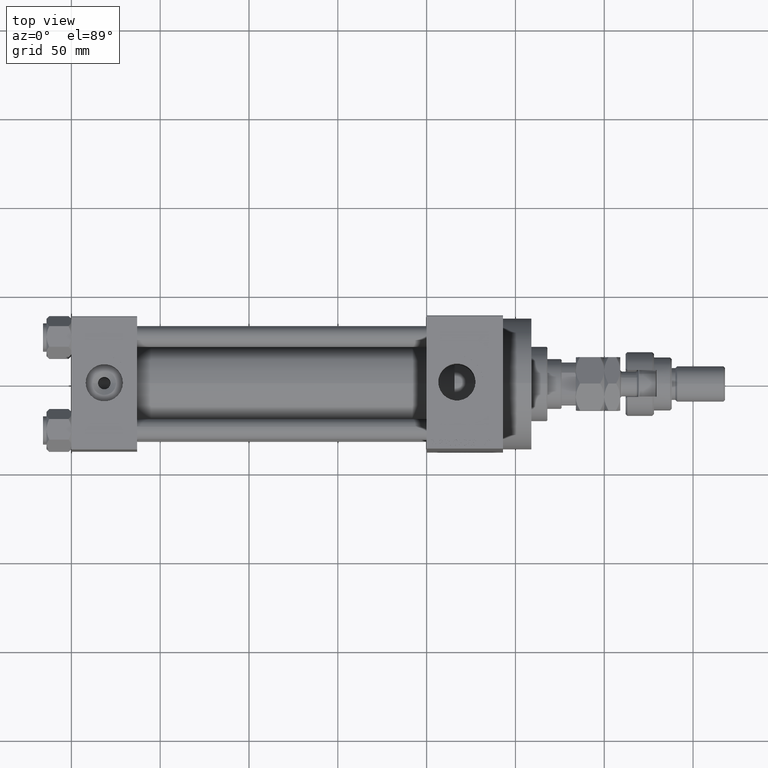
[diagram: clean part render]
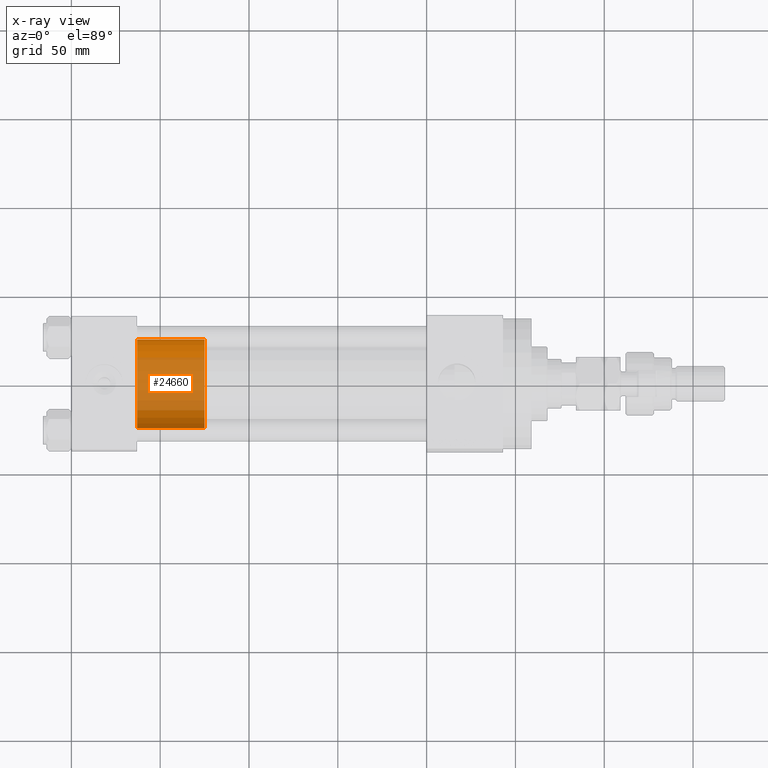
[diagram: x-ray — body ghosted, one internal face saturated and labeled with its STEP entity id]
A machine part, top view, then the same camera in x-ray: the body is ghosted and one INTERNAL B-rep face — a face not visible from any outside direction — is saturated and labeled: STEP entity #24660.
In plain terms, the highlighted cylindrical surface (partial cylindrical patch) has radius 25 mm, axis along (-1, 0, 0).
Its self-contained STEP definition (entity closure, byte-faithful):
#502 = CARTESIAN_POINT ( 'NONE',  ( -25.00000000000000000, 0.000000000000000000, 38.00000000000000000 ) ) ;
#4387 = ORIENTED_EDGE ( 'NONE', *, *, #37538, .F. ) ;
#6887 = EDGE_CURVE ( 'NONE', #29054, #11233, #15531, .T. ) ;
#8767 = AXIS2_PLACEMENT_3D ( 'NONE', #11409, #26918, #15210 ) ;
#8800 = CARTESIAN_POINT ( 'NONE',  ( 0.000000000000000000, 0.000000000000000000, 38.00000000000000000 ) ) ;
#9273 = AXIS2_PLACEMENT_3D ( 'NONE', #8800, #12371, #16167 ) ;
#9353 = CARTESIAN_POINT ( 'NONE',  ( 0.000000000000000000, 0.000000000000000000, 0.000000000000000000 ) ) ;
#9571 = CARTESIAN_POINT ( 'NONE',  ( -25.00000000000000000, 0.000000000000000000, 38.00000000000000000 ) ) ;
#11127 = CARTESIAN_POINT ( 'NONE',  ( 25.00000000000000000, 3.061616997868383043E-15, 38.00000000000000000 ) ) ;
#11233 = VERTEX_POINT ( 'NONE', #31351 ) ;
#11409 = CARTESIAN_POINT ( 'NONE',  ( 0.000000000000000000, 0.000000000000000000, 38.00000000000000000 ) ) ;
#12244 = EDGE_CURVE ( 'NONE', #29149, #13830, #40942, .T. ) ;
#12371 = DIRECTION ( 'NONE',  ( 0.000000000000000000, 0.000000000000000000, 1.000000000000000000 ) ) ;
#13830 = VERTEX_POINT ( 'NONE', #502 ) ;
#13844 = ORIENTED_EDGE ( 'NONE', *, *, #6887, .T. ) ;
#13963 = VECTOR ( 'NONE', #48460, 1000.000000000000000 ) ;
#14042 = ORIENTED_EDGE ( 'NONE', *, *, #48618, .T. ) ;
#15210 = DIRECTION ( 'NONE',  ( -1.000000000000000000, 0.000000000000000000, 0.000000000000000000 ) ) ;
#15531 = CIRCLE ( 'NONE', #43964, 25.00000000000000000 ) ;
#15731 = CYLINDRICAL_SURFACE ( 'NONE', #8767, 25.00000000000000000 ) ;
#16167 = DIRECTION ( 'NONE',  ( 1.000000000000000000, 0.000000000000000000, 0.000000000000000000 ) ) ;
#17955 = DIRECTION ( 'NONE',  ( 1.000000000000000000, 0.000000000000000000, 0.000000000000000000 ) ) ;
#21034 = DIRECTION ( 'NONE',  ( 0.000000000000000000, 0.000000000000000000, 1.000000000000000000 ) ) ;
#21317 = CARTESIAN_POINT ( 'NONE',  ( 25.00000000000000000, 3.061616997868383043E-15, 0.000000000000000000 ) ) ;
#21338 = EDGE_LOOP ( 'NONE', ( #31772, #14042, #13844, #4387 ) ) ;
#21759 = VECTOR ( 'NONE', #46257, 1000.000000000000000 ) ;
#24660 = ADVANCED_FACE ( 'NONE', ( #31735 ), #15731, .T. ) ;
#26918 = DIRECTION ( 'NONE',  ( -0.000000000000000000, -0.000000000000000000, -1.000000000000000000 ) ) ;
#29054 = VERTEX_POINT ( 'NONE', #21317 ) ;
#29149 = VERTEX_POINT ( 'NONE', #11127 ) ;
#30753 = CARTESIAN_POINT ( 'NONE',  ( 25.00000000000000000, 3.061616997868383043E-15, 38.00000000000000000 ) ) ;
#31351 = CARTESIAN_POINT ( 'NONE',  ( -25.00000000000000000, 0.000000000000000000, 0.000000000000000000 ) ) ;
#31735 = FACE_OUTER_BOUND ( 'NONE', #21338, .T. ) ;
#31772 = ORIENTED_EDGE ( 'NONE', *, *, #12244, .F. ) ;
#32709 = LINE ( 'NONE', #9571, #13963 ) ;
#37538 = EDGE_CURVE ( 'NONE', #13830, #11233, #32709, .T. ) ;
#40942 = CIRCLE ( 'NONE', #9273, 25.00000000000000000 ) ;
#43964 = AXIS2_PLACEMENT_3D ( 'NONE', #9353, #21034, #17955 ) ;
#46257 = DIRECTION ( 'NONE',  ( -0.000000000000000000, -0.000000000000000000, -1.000000000000000000 ) ) ;
#48460 = DIRECTION ( 'NONE',  ( -0.000000000000000000, -0.000000000000000000, -1.000000000000000000 ) ) ;
#48618 = EDGE_CURVE ( 'NONE', #29149, #29054, #50081, .T. ) ;
#50081 = LINE ( 'NONE', #30753, #21759 ) ;